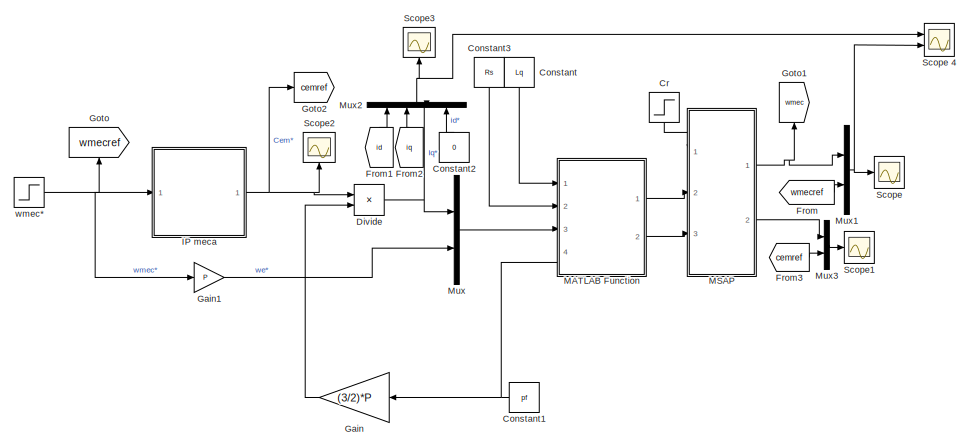
[diagram: root canvas - part 1/2, left side, full height]
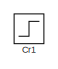
[diagram: root canvas - part 2/2, bottom right region]
MODEL slx_256910691034
KIND model
CONFIG AbsTol = auto
CONFIG EnableMultiTasking = off
CONFIG FixedStep = 1e-5
CONFIG MaxStep = auto
CONFIG MinStep = auto
CONFIG RelTol = 1e-3
CONFIG SampleTimeConstraint = Unconstrained
CONFIG SolverName = ode1
CONFIG StartTime = 0.0
CONFIG StopTime = 10
BLOCK [Constant] Constant
  NameLocation = left
  Value = Lq
BLOCK [Constant] Constant1
  NameLocation = top
  Value = pf
BLOCK [Constant] Constant2
  NameLocation = right
  Value = 0
BLOCK [Constant] Constant3
  NameLocation = left
  Value = Rs
BLOCK [Step] Cr
  After = 1+C0
  Before = 0.5
  NameLocation = left
  SampleTime = 0
  Time = 6
BLOCK [Step] Cr1
  After = 5
  Before = 0.5
  NameLocation = left
  SampleTime = 0
  Time = 2
BLOCK [Product] Divide
  Inputs = */
  Ports = [2, 1]
BLOCK [From] From
  GotoTag = wmecref
BLOCK [From] From1
  GotoTag = id
  NameLocation = right
  TagVisibility = global
BLOCK [From] From2
  GotoTag = iq
  NameLocation = right
  TagVisibility = global
BLOCK [From] From3
  GotoTag = cemref
BLOCK [Gain] Gain
  Gain = (3/2)*P
  NameLocation = top
BLOCK [Gain] Gain1
  Gain = P
BLOCK [Goto] Goto
  GotoTag = wmecref
  NameLocation = right
BLOCK [Goto] Goto1
  GotoTag = wmec
  NameLocation = right
  TagVisibility = global
BLOCK [Goto] Goto2
  GotoTag = cemref
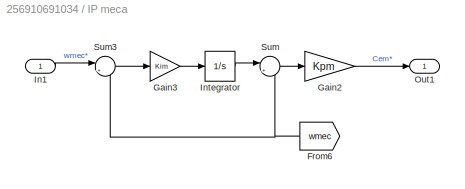
BLOCK [SubSystem] IP meca
  Ports = [1, 1]
  RequestExecContextInheritance = off
BLOCK [From] IP meca/From6
  GotoTag = wmec
  NameLocation = top
  TagVisibility = global
BLOCK [Gain] IP meca/Gain2
  Gain = Kpm
BLOCK [Gain] IP meca/Gain3
  Gain = Kim
BLOCK [Inport] IP meca/In1
  IconDisplay = Signal name
BLOCK [Integrator] IP meca/Integrator
  Ports = [1, 1]
BLOCK [Outport] IP meca/Out1
  IconDisplay = Signal name
BLOCK [Sum] IP meca/Sum
  Inputs = |+-
  Ports = [2, 1]
BLOCK [Sum] IP meca/Sum3
  Inputs = |+-
  Ports = [2, 1]
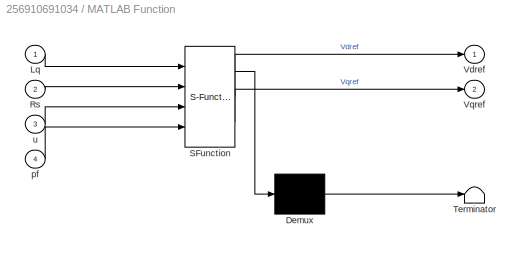
BLOCK [SubSystem] MATLAB Function
  ErrorFcn = Stateflow.Translate.translate
  PermitHierarchicalResolution = ExplicitOnly
  Ports = [4, 2]
  RequestExecContextInheritance = off
  SFBlockType = MATLAB Function
  TreatAsAtomicUnit = on
BLOCK [Demux] MATLAB Function/ Demux 
  Outputs = 1
  Ports = [1, 1]
BLOCK [S-Function] MATLAB Function/ SFunction 
  EnableBusSupport = on
  FunctionName = sf_sfun
  PortCounts = [4 3]
  Ports = [4, 3]
  SFcnIsStateOwnerBlock = off
  SFunctionDeploymentMode = off
  Tag = Stateflow S-Function 1
BLOCK [Terminator] MATLAB Function/ Terminator 
BLOCK [Inport] MATLAB Function/Lq
BLOCK [Inport] MATLAB Function/Rs
  Port = 2
BLOCK [Outport] MATLAB Function/Vdref
BLOCK [Outport] MATLAB Function/Vqref
  Port = 2
BLOCK [Inport] MATLAB Function/pf
  Port = 4
BLOCK [Inport] MATLAB Function/u
  Port = 3
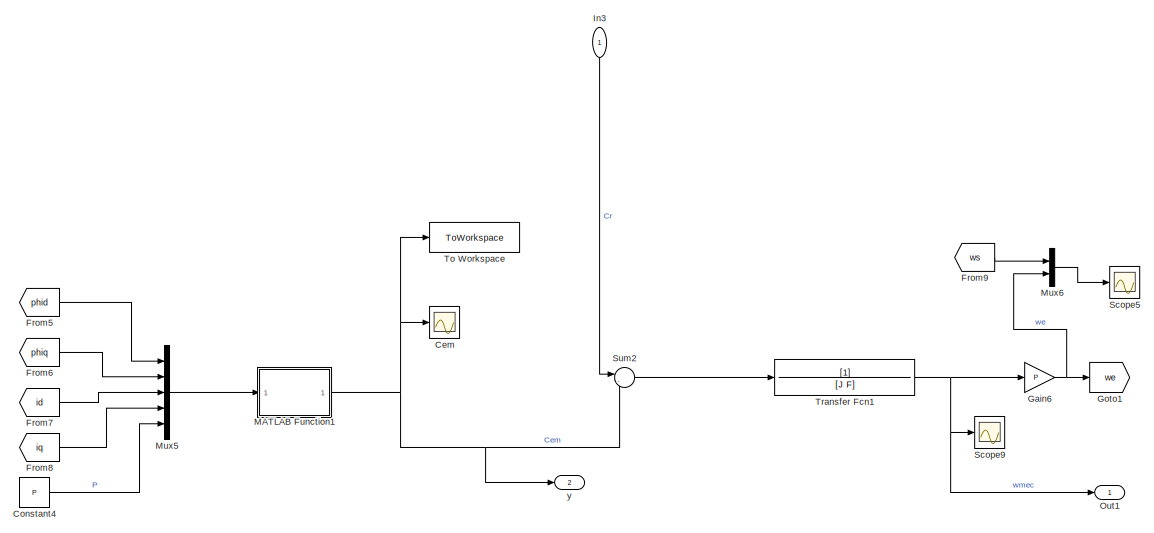
[diagram: MSAP - part 1/2, right side, full height]
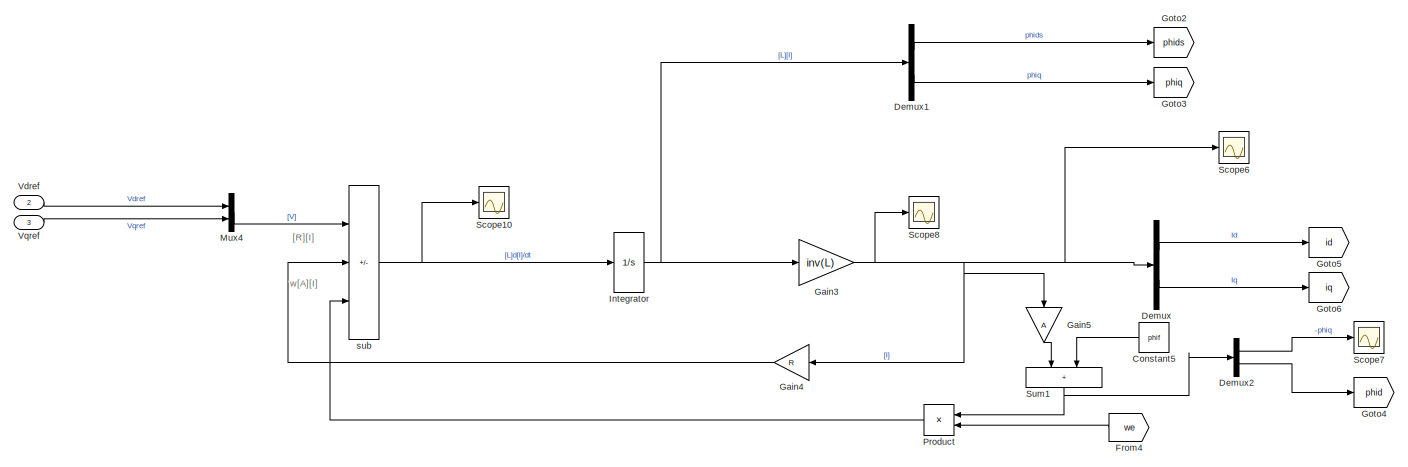
[diagram: MSAP - part 2/2, left side, full height]
BLOCK [SubSystem] MSAP
  Ports = [3, 2]
  RequestExecContextInheritance = off
BLOCK [Scope] MSAP/Cem
  Floating = off
  NumInputPorts = 1
  Ports = [1]
  ScopeSpecificationString = Simulink.scopes.TimeScopeBlockCfg('CurrentConfiguration', extmgr.ConfigurationSet(extmgr.Configuration('Core','General UI',true),extmgr.Configuration('Core','Source UI',true),extmgr.Configuration('Sources','WiredSimulink',true,'DataLoggingVariableName','ScopeData6'),extmgr.Configuration('Visuals','Time Domain',true,'SerializedDisplays',{struct('MinYLimReal','-15287997057405471362646147438087013557...<+1736ch>
BLOCK [Constant] MSAP/Constant4
  Value = P
BLOCK [Constant] MSAP/Constant5
  NameLocation = top
  Value = phif
BLOCK [Demux] MSAP/Demux
  Outputs = 2
  Ports = [1, 2]
BLOCK [Demux] MSAP/Demux1
  Outputs = 2
  Ports = [1, 2]
BLOCK [Demux] MSAP/Demux2
  Outputs = 2
  Ports = [1, 2]
BLOCK [From] MSAP/From4
  GotoTag = we
  NameLocation = top
BLOCK [From] MSAP/From5
  GotoTag = phid
BLOCK [From] MSAP/From6
  GotoTag = phiq
BLOCK [From] MSAP/From7
  GotoTag = id
  TagVisibility = global
BLOCK [From] MSAP/From8
  GotoTag = iq
  TagVisibility = global
BLOCK [From] MSAP/From9
  GotoTag = ws
BLOCK [Gain] MSAP/Gain3
  Gain = inv(L)
  Multiplication = Matrix(K*u)
BLOCK [Gain] MSAP/Gain4
  Gain = R
  Multiplication = Matrix(K*u)
  NameLocation = top
BLOCK [Gain] MSAP/Gain5
  Gain = A
  Multiplication = Matrix(K*u)
  NameLocation = left
BLOCK [Gain] MSAP/Gain6
  Gain = P
BLOCK [Goto] MSAP/Goto1
  GotoTag = we
BLOCK [Goto] MSAP/Goto2
  GotoTag = phids
BLOCK [Goto] MSAP/Goto3
  GotoTag = phiq
BLOCK [Goto] MSAP/Goto4
  GotoTag = phid
BLOCK [Goto] MSAP/Goto5
  GotoTag = id
  TagVisibility = global
BLOCK [Goto] MSAP/Goto6
  GotoTag = iq
  TagVisibility = global
BLOCK [Inport] MSAP/In3
  IconDisplay = Signal name
  NameLocation = left
BLOCK [Integrator] MSAP/Integrator
  Ports = [1, 1]
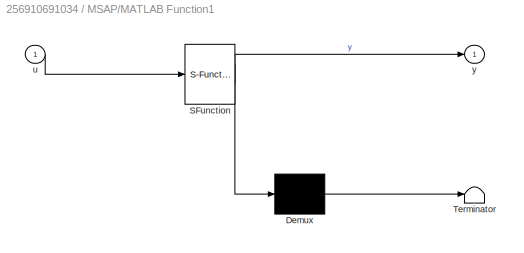
BLOCK [SubSystem] MSAP/MATLAB Function1
  ErrorFcn = Stateflow.Translate.translate
  PermitHierarchicalResolution = ExplicitOnly
  Ports = [1, 1]
  RequestExecContextInheritance = off
  SFBlockType = MATLAB Function
  TreatAsAtomicUnit = on
BLOCK [Demux] MSAP/MATLAB Function1/ Demux 
  Outputs = 1
  Ports = [1, 1]
BLOCK [S-Function] MSAP/MATLAB Function1/ SFunction 
  EnableBusSupport = on
  FunctionName = sf_sfun
  PortCounts = [1 2]
  Ports = [1, 2]
  SFcnIsStateOwnerBlock = off
  SFunctionDeploymentMode = off
  Tag = Stateflow S-Function 2
BLOCK [Terminator] MSAP/MATLAB Function1/ Terminator 
BLOCK [Inport] MSAP/MATLAB Function1/u
BLOCK [Outport] MSAP/MATLAB Function1/y
BLOCK [Mux] MSAP/Mux4
  DisplayOption = bar
  Inputs = 2
  Ports = [2, 1]
BLOCK [Mux] MSAP/Mux5
  DisplayOption = bar
  Inputs = 5
  Ports = [5, 1]
BLOCK [Mux] MSAP/Mux6
  DisplayOption = bar
  Inputs = 2
  Ports = [2, 1]
BLOCK [Outport] MSAP/Out1
  IconDisplay = Signal name
BLOCK [Product] MSAP/Product
  NameLocation = top
  Ports = [2, 1]
BLOCK [Scope] MSAP/Scope10
  Floating = off
  NumInputPorts = 1
  Ports = [1]
  ScopeSpecificationString = Simulink.scopes.TimeScopeBlockCfg('CurrentConfiguration', extmgr.ConfigurationSet(extmgr.Configuration('Core','General UI',true),extmgr.Configuration('Core','Source UI',true),extmgr.Configuration('Sources','WiredSimulink',true,'DataLoggingVariableName','ScopeData7'),extmgr.Configuration('Visuals','Time Domain',true,'SerializedDisplays',{struct('MinYLimReal','-47185058807086313602723176658732344206...<+1940ch>
BLOCK [Scope] MSAP/Scope5
  Floating = off
  NumInputPorts = 1
  Ports = [1]
  ScopeSpecificationString = Simulink.scopes.TimeScopeBlockCfg('CurrentConfiguration', extmgr.ConfigurationSet(extmgr.Configuration('Core','General UI',true),extmgr.Configuration('Core','Source UI',true),extmgr.Configuration('Sources','WiredSimulink',true,'DataLoggingVariableName','ScopeData8'),extmgr.Configuration('Visuals','Time Domain',true,'SerializedDisplays',{struct('MinYLimReal','246.17362','MaxYLimReal','334.01237','Y...<+1794ch>
BLOCK [Scope] MSAP/Scope6
  Floating = off
  NumInputPorts = 1
  Ports = [1]
  ScopeSpecificationString = Simulink.scopes.TimeScopeBlockCfg('CurrentConfiguration', extmgr.ConfigurationSet(extmgr.Configuration('Core','General UI',true),extmgr.Configuration('Core','Source UI',true),extmgr.Configuration('Sources','WiredSimulink',true,'DataLoggingVariableName','ScopeData9'),extmgr.Configuration('Visuals','Time Domain',true,'SerializedDisplays',{struct('MinYLimReal','-10822310628876025319186366905135936717...<+3616ch>
BLOCK [Scope] MSAP/Scope7
  Floating = off
  NumInputPorts = 1
  Ports = [1]
  ScopeSpecificationString = Simulink.scopes.TimeScopeBlockCfg('CurrentConfiguration', extmgr.ConfigurationSet(extmgr.Configuration('Core','General UI',true),extmgr.Configuration('Core','Source UI',true),extmgr.Configuration('Sources','WiredSimulink',true,'DataLoggingVariableName','ScopeData10'),extmgr.Configuration('Visuals','Time Domain',true,'SerializedDisplays',{struct('MinYLimReal','-1413596756984263550154030862840932937...<+3223ch>
BLOCK [Scope] MSAP/Scope8
  Floating = off
  NumInputPorts = 1
  Ports = [1]
  ScopeSpecificationString = Simulink.scopes.TimeScopeBlockCfg('CurrentConfiguration', extmgr.ConfigurationSet(extmgr.Configuration('Core','General UI',true),extmgr.Configuration('Core','Source UI',true),extmgr.Configuration('Sources','WiredSimulink',true,'DataLoggingVariableName','ScopeData11'),extmgr.Configuration('Visuals','Time Domain',true,'SerializedDisplays',{struct('MinYLimReal','-1485346282409737000852894810103375624...<+3616ch>
BLOCK [Scope] MSAP/Scope9
  Floating = off
  NumInputPorts = 1
  Ports = [1]
  ScopeSpecificationString = Simulink.scopes.TimeScopeBlockCfg('CurrentConfiguration', extmgr.ConfigurationSet(extmgr.Configuration('Core','General UI',true),extmgr.Configuration('Core','Source UI',true),extmgr.Configuration('Sources','WiredSimulink',true),extmgr.Configuration('Visuals','Time Domain',true,'SerializedDisplays',{struct('MinYLimReal','-36607961342497988753321154095486028461617119732753797734589094517900339174396...<+3187ch>
BLOCK [Sum] MSAP/Sum1
  IconShape = rectangular
  NameLocation = left
  Ports = [2, 1]
BLOCK [Sum] MSAP/Sum2
  Inputs = |-+
  Ports = [2, 1]
BLOCK [ToWorkspace] MSAP/To Workspace
  FixptAsFi = on
  MaxDataPoints = inf
  Ports = [1]
  SampleTime = -1
  SaveFormat = Timeseries
  VariableName = Torque
BLOCK [TransferFcn] MSAP/Transfer Fcn1
  Denominator = [J F]
BLOCK [Inport] MSAP/Vdref
  IconDisplay = Signal name
  Port = 2
BLOCK [Inport] MSAP/Vqref
  IconDisplay = Signal name
  Port = 3
BLOCK [Sum] MSAP/sub
  IconShape = rectangular
  Inputs = +--
  Ports = [3, 1]
BLOCK [Outport] MSAP/y
  IconDisplay = Signal name
  Port = 2
BLOCK [Mux] Mux
  DisplayOption = bar
  Inputs = 2
  Ports = [2, 1]
BLOCK [Mux] Mux1
  DisplayOption = bar
  Inputs = 2
  Ports = [2, 1]
BLOCK [Mux] Mux2
  DisplayOption = bar
  NameLocation = right
  Ports = [4, 1]
BLOCK [Mux] Mux3
  DisplayOption = bar
  Inputs = 2
  Ports = [2, 1]
BLOCK [Scope] Scope
  Floating = off
  NumInputPorts = 1
  Ports = [1]
  ScopeSpecificationString = Simulink.scopes.TimeScopeBlockCfg('CurrentConfiguration', extmgr.ConfigurationSet(extmgr.Configuration('Core','General UI',true),extmgr.Configuration('Core','Source UI',true),extmgr.Configuration('Sources','WiredSimulink',true,'DataLoggingVariableName','ScopeData1'),extmgr.Configuration('Visuals','Time Domain',true,'SerializedDisplays',{struct('MinYLimReal','-41.11841','MaxYLimReal','353.4576','YL...<+1766ch>
BLOCK [Scope] Scope 4
  Floating = off
  NumInputPorts = 2
  Ports = [2]
  ScopeSpecificationString = Simulink.scopes.TimeScopeBlockCfg('CurrentConfiguration', extmgr.ConfigurationSet(extmgr.Configuration('Core','General UI',true),extmgr.Configuration('Core','Source UI',true),extmgr.Configuration('Sources','WiredSimulink',true,'DataLoggingVariableName','ScopeData1'),extmgr.Configuration('Visuals','Time Domain',true,'SerializedDisplays',{struct('MinYLimReal','-2.53591','MaxYLimReal','7.63287','YLab...<+2310ch>
BLOCK [Scope] Scope1
  Floating = off
  NumInputPorts = 1
  Ports = [1]
  ScopeSpecificationString = Simulink.scopes.TimeScopeBlockCfg('CurrentConfiguration', extmgr.ConfigurationSet(extmgr.Configuration('Core','General UI',true),extmgr.Configuration('Core','Source UI',true),extmgr.Configuration('Sources','WiredSimulink',true,'DataLoggingVariableName','ScopeData2'),extmgr.Configuration('Visuals','Time Domain',true,'SerializedDisplays',{struct('MinYLimReal','-40.16396','MaxYLimReal','63.29003','YL...<+1788ch>
BLOCK [Scope] Scope2
  Floating = off
  NameLocation = right
  NumInputPorts = 1
  Ports = [1]
  ScopeSpecificationString = Simulink.scopes.TimeScopeBlockCfg('CurrentConfiguration', extmgr.ConfigurationSet(extmgr.Configuration('Core','General UI',true),extmgr.Configuration('Core','Source UI',true),extmgr.Configuration('Sources','WiredSimulink',true,'DataLoggingVariableName','ScopeData3'),extmgr.Configuration('Visuals','Time Domain',true,'SerializedDisplays',{struct('MinYLimReal','-282.25835','MaxYLimReal','698.26264','...<+1425ch>
BLOCK [Scope] Scope3
  Floating = off
  NameLocation = right
  NumInputPorts = 1
  Ports = [1]
  ScopeSpecificationString = Simulink.scopes.TimeScopeBlockCfg('CurrentConfiguration', extmgr.ConfigurationSet(extmgr.Configuration('Core','General UI',true),extmgr.Configuration('Core','Source UI',true),extmgr.Configuration('Sources','WiredSimulink',true,'DataLoggingVariableName','ScopeData4'),extmgr.Configuration('Visuals','Time Domain',true,'SerializedDisplays',{struct('MinYLimReal','-4.27663','MaxYLimReal','9.44346','YLab...<+1734ch>
BLOCK [Step] wmec*
  After = 157
  SampleTime = 0
  Time = 4
ANNOTATION MSAP: [R][I]
ANNOTATION MSAP: w[A][I]
NET Constant1:1 -> Gain:1, MATLAB Function:4
LINE Constant2:1 -> Mux2:4
LINE Constant3:1 -> MATLAB Function:2
LINE Constant:1 -> MATLAB Function:1
LINE Cr:1 -> MSAP:1
NET Divide:1 -> Mux2:3, Mux:1
LINE From1:1 -> Mux2:1
LINE From2:1 -> Mux2:2
LINE From3:1 -> Mux3:2
LINE From:1 -> Mux1:2
LINE Gain1:1 -> Mux:2
LINE Gain:1 -> Divide:2
NET IP meca/From6:1 -> IP meca/Sum3:2, IP meca/Sum:2
LINE IP meca/Gain2:1 -> IP meca/Out1:1
LINE IP meca/Gain3:1 -> IP meca/Integrator:1
LINE IP meca/In1:1 -> IP meca/Sum3:1
LINE IP meca/Integrator:1 -> IP meca/Sum:1
LINE IP meca/Sum3:1 -> IP meca/Gain3:1
LINE IP meca/Sum:1 -> IP meca/Gain2:1
NET IP meca:1 -> Divide:1, Goto2:1, Scope2:1
LINE MATLAB Function:1 -> MSAP:2
LINE MATLAB Function:2 -> MSAP:3
LINE MSAP/Constant4:1 -> MSAP/Mux5:5
LINE MSAP/Constant5:1 -> MSAP/Sum1:2
LINE MSAP/Demux1:1 -> MSAP/Goto2:1
LINE MSAP/Demux1:2 -> MSAP/Goto3:1
LINE MSAP/Demux2:1 -> MSAP/Scope7:1
LINE MSAP/Demux2:2 -> MSAP/Goto4:1
LINE MSAP/Demux:1 -> MSAP/Goto5:1
LINE MSAP/Demux:2 -> MSAP/Goto6:1
LINE MSAP/From4:1 -> MSAP/Product:2
LINE MSAP/From5:1 -> MSAP/Mux5:1
LINE MSAP/From6:1 -> MSAP/Mux5:2
LINE MSAP/From7:1 -> MSAP/Mux5:3
LINE MSAP/From8:1 -> MSAP/Mux5:4
LINE MSAP/From9:1 -> MSAP/Mux6:1
NET MSAP/Gain3:1 -> MSAP/Demux:1, MSAP/Gain4:1, MSAP/Gain5:1, MSAP/Scope6:1, MSAP/Scope8:1
LINE MSAP/Gain4:1 -> MSAP/sub:2
LINE MSAP/Gain5:1 -> MSAP/Sum1:1
NET MSAP/Gain6:1 -> MSAP/Goto1:1, MSAP/Mux6:2
LINE MSAP/In3:1 -> MSAP/Sum2:1
NET MSAP/Integrator:1 -> MSAP/Demux1:1, MSAP/Gain3:1
NET MSAP/MATLAB Function1:1 -> MSAP/Cem:1, MSAP/Sum2:2, MSAP/To Workspace:1, MSAP/y:1
LINE MSAP/Mux4:1 -> MSAP/sub:1
LINE MSAP/Mux5:1 -> MSAP/MATLAB Function1:1
LINE MSAP/Mux6:1 -> MSAP/Scope5:1
LINE MSAP/Product:1 -> MSAP/sub:3
NET MSAP/Sum1:1 -> MSAP/Demux2:1, MSAP/Product:1
LINE MSAP/Sum2:1 -> MSAP/Transfer Fcn1:1
NET MSAP/Transfer Fcn1:1 -> MSAP/Gain6:1, MSAP/Out1:1, MSAP/Scope9:1
LINE MSAP/Vdref:1 -> MSAP/Mux4:1
LINE MSAP/Vqref:1 -> MSAP/Mux4:2
NET MSAP/sub:1 -> MSAP/Integrator:1, MSAP/Scope10:1
NET MSAP:1 -> Goto1:1, Mux1:1
LINE MSAP:2 -> Mux3:1
NET Mux1:1 -> Scope 4:2, Scope:1
NET Mux2:1 -> Scope 4:1, Scope3:1
LINE Mux3:1 -> Scope1:1
LINE Mux:1 -> MATLAB Function:3
NET wmec*:1 -> Gain1:1, Goto:1, IP meca:1
note: NET lines group one-source signal fan-out (src -> all destinations, sorted); 1:1 wires keep LINE
CHART MATLAB Function states=1 transitions=1
  STATE_LABEL 'eML_blk_kernel()'
  STATE_LABEL 'SCRIPT:\nfunction [Vdref,Vqref] = Correcteurelec(Lq,Rs,u,pf)\nVdref=-u(2)*Lq*u(1);\nVqref=u(2)*pf+Rs*u(1);'
CHART MSAP/MATLAB Function1 states=1 transitions=1
  STATE_LABEL 'eML_blk_kernel()'
  STATE_LABEL 'SCRIPT:\nfunction y = CEM(u)\n\ny =(3/2)*u(5)*(u(1)*u(4)-u(2)*u(3));\n'
CHART  states=0 transitions=0
CHART  states=0 transitions=0
